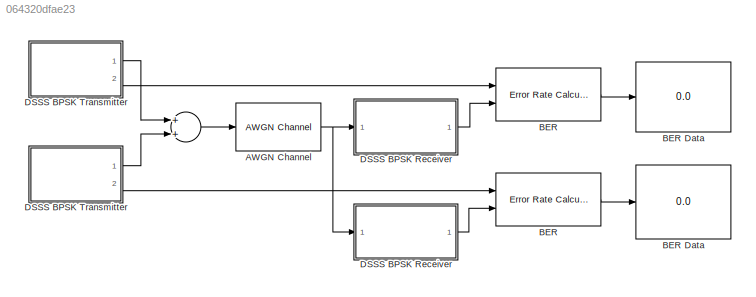
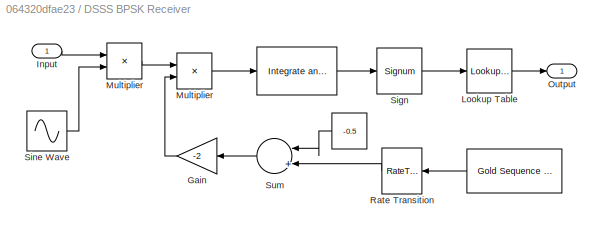
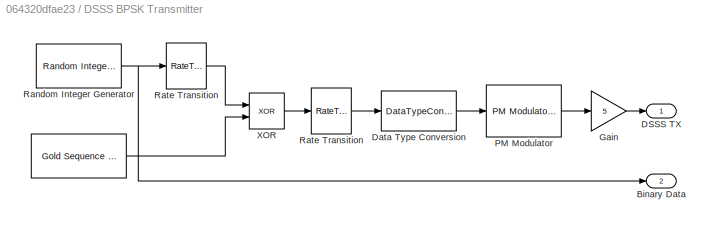
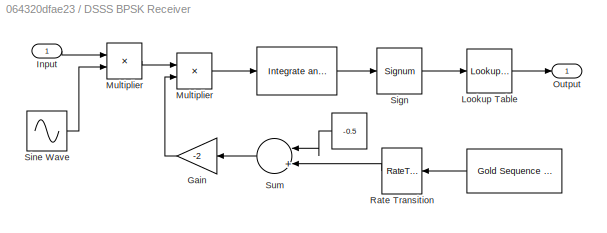
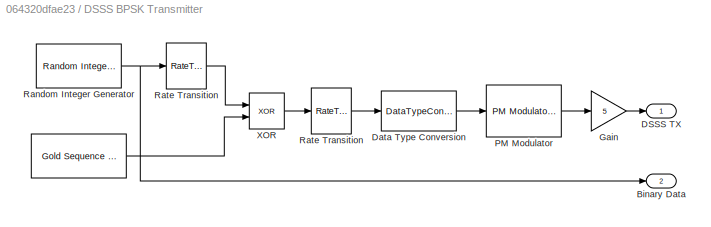
MODEL slx_064320dfae23
KIND model
BLOCK [Sum]  
  InputSameDT = off
  OutDataTypeStr = Inherit: Inherit via internal rule
  Ports = [2, 1]
  SaturateOnIntegerOverflow = off
BLOCK [Reference]  BER   REF=commsink2/Error Rate
Calculation
  N = 2
  PMode = Port
  Ports = [2, 1]
  RsMode2 = off
  SourceBlock = commsink2/Error Rate\nCalculation
  SourceType = Error Rate Calculation
  WsName = ErrorVec
  cp_mode = Entire frame
  maxBits = 1e6
  numErr = 100
  st_delay = 0
  stop = off
  subframe = []
BLOCK [Display]  BER Data 
  Decimation = 1
  Format = long
  Ports = [1]
BLOCK [Reference] AWGN Channel  REF=commchan3/AWGN
Channel
  EbNodB = 80
  EsNodB = 10
  InputProcessing = Columns as channels (frame based)
  Ports = [1, 1]
  Ps = 12.5
  SNRdB = 0
  SourceBlock = commchan3/AWGN\nChannel
  SourceType = AWGN Channel
  Tsym = 1e-3
  UserDataPersistent = on
  bitsPerSym = 1
  noiseMode = Signal to noise ratio  (Eb/No)
  seed = randseed
  variance = 100000
BLOCK [Reference] BER  REF=commsink2/Error Rate
Calculation
  N = 2
  PMode = Port
  Ports = [2, 1]
  RsMode2 = off
  SourceBlock = commsink2/Error Rate\nCalculation
  SourceType = Error Rate Calculation
  WsName = ErrorVec
  cp_mode = Entire frame
  maxBits = 1e6
  numErr = 100
  st_delay = 0
  stop = off
  subframe = []
BLOCK [Display] BER Data
  Decimation = 1
  Format = long
  Ports = [1]
BLOCK [SubSystem] DSSS BPSK Receiver
  Ports = [1, 1]
  RequestExecContextInheritance = off
BLOCK [SubSystem] DSSS BPSK Receiver  
  Ports = [1, 1]
  RequestExecContextInheritance = off
BLOCK [Constant] DSSS BPSK Receiver  / 
  Value = -0.5
BLOCK [Reference] DSSS BPSK Receiver  /     REF=commseqgen2/Gold Sequence
Generator
  Ports = [0, 1]
  SourceBlock = commseqgen2/Gold Sequence\nGenerator
  SourceType = Gold Sequence Generator
  frameBased = off
  genPoly1 = [1 0 0 1 0 1]
  genPoly2 = [1 1 1 1 0 1]
  index = 0
  iniState1 = [1 0 1 0 1]
  iniState2 = [1 1 1 0 0]
  maxOutSize = [10 1]
  maxOutSizeMode = Dialog parameter
  outDataType = double
  outVarSiz = off
  reset = off
  sampPerFrame = 1
  shift = 0
  ts = 2e-5
BLOCK [Reference] DSSS BPSK Receiver  /      REF=commfilt2/Integrate
and Dump
  LockScale = off
  Ports = [1, 1]
  SourceBlock = commfilt2/Integrate\nand Dump
  SourceType = Integrate and Dump
  accumFracLength = 30
  accumMode = Inherit via internal rule
  accumWordLength = 32
  nodump = off
  obssamples = 5000
  offsetsamples = 0
  outputFracLength = 30
  outputMode = Same as accumulator
  outputWordLength = 32
  overflowMode = off
  roundingMode = Floor
BLOCK [Lookup_n-D] DSSS BPSK Receiver  / Lookup Table
  BreakpointsForDimension1 = [-1, 0, 1]
  BreakpointsForDimension3 = [5, 7]
  InternalRulePriority = Speed
  NumberOfTableDimensions = 1
  Ports = [1, 1]
  RndMeth = Simplest
  Table = [0, 0, 1]
BLOCK [Gain] DSSS BPSK Receiver  /Gain
  Gain = -2
  OutDataTypeStr = Inherit: Inherit via internal rule
  ParamDataTypeStr = Inherit: Inherit via internal rule
  SaturateOnIntegerOverflow = off
BLOCK [Inport] DSSS BPSK Receiver  /Input
  IconDisplay = Port number
BLOCK [Product] DSSS BPSK Receiver  /Multiplier 
  InputSameDT = off
  OutDataTypeStr = Inherit: Inherit via internal rule
  Ports = [2, 1]
  RndMeth = Floor
  SaturateOnIntegerOverflow = off
BLOCK [Outport] DSSS BPSK Receiver  /Output
  IconDisplay = Port number
BLOCK [RateTransition] DSSS BPSK Receiver  /Rate Transition 
  OutPortSampleTime = 2e-7
BLOCK [Signum] DSSS BPSK Receiver  /Sign
BLOCK [Sin] DSSS BPSK Receiver  /Sine Wave
  Amplitude = 5
  Frequency = 200000*pi
  Phase = pi/2
  Ports = [0, 1]
  SampleTime = 2e-7
BLOCK [Sum] DSSS BPSK Receiver  /Sum
  InputSameDT = off
  Inputs = |++
  OutDataTypeStr = Inherit: Inherit via internal rule
  Ports = [2, 1]
  SaturateOnIntegerOverflow = off
BLOCK [Constant] DSSS BPSK Receiver/ 
  Value = -0.5
BLOCK [Reference] DSSS BPSK Receiver/     REF=commseqgen2/Gold Sequence
Generator
  Ports = [0, 1]
  SourceBlock = commseqgen2/Gold Sequence\nGenerator
  SourceType = Gold Sequence Generator
  frameBased = off
  genPoly1 = [1 0 0 1 0 1]
  genPoly2 = [1 1 1 1 0 1]
  index = 0
  iniState1 = [1 1 1 0 1]
  iniState2 = [1 0 0 0 1]
  maxOutSize = [10 1]
  maxOutSizeMode = Dialog parameter
  outDataType = double
  outVarSiz = off
  reset = off
  sampPerFrame = 1
  shift = 0
  ts = 2e-5
BLOCK [Reference] DSSS BPSK Receiver/      REF=commfilt2/Integrate
and Dump
  LockScale = off
  Ports = [1, 1]
  SourceBlock = commfilt2/Integrate\nand Dump
  SourceType = Integrate and Dump
  accumFracLength = 30
  accumMode = Inherit via internal rule
  accumWordLength = 32
  nodump = off
  obssamples = 5000
  offsetsamples = 0
  outputFracLength = 30
  outputMode = Same as accumulator
  outputWordLength = 32
  overflowMode = off
  roundingMode = Floor
BLOCK [Lookup_n-D] DSSS BPSK Receiver/ Lookup Table
  BreakpointsForDimension1 = [-1, 0, 1]
  BreakpointsForDimension3 = [5, 7]
  InternalRulePriority = Speed
  NumberOfTableDimensions = 1
  Ports = [1, 1]
  RndMeth = Simplest
  Table = [0, 0, 1]
BLOCK [Gain] DSSS BPSK Receiver/Gain
  Gain = -2
  OutDataTypeStr = Inherit: Inherit via internal rule
  ParamDataTypeStr = Inherit: Inherit via internal rule
  SaturateOnIntegerOverflow = off
BLOCK [Inport] DSSS BPSK Receiver/Input
  IconDisplay = Port number
BLOCK [Product] DSSS BPSK Receiver/Multiplier 
  InputSameDT = off
  OutDataTypeStr = Inherit: Inherit via internal rule
  Ports = [2, 1]
  RndMeth = Floor
  SaturateOnIntegerOverflow = off
BLOCK [Outport] DSSS BPSK Receiver/Output
  IconDisplay = Port number
BLOCK [RateTransition] DSSS BPSK Receiver/Rate Transition 
  OutPortSampleTime = 2e-7
BLOCK [Signum] DSSS BPSK Receiver/Sign
BLOCK [Sin] DSSS BPSK Receiver/Sine Wave
  Amplitude = 5
  Frequency = 200000*pi
  Phase = pi/2
  Ports = [0, 1]
  SampleTime = 2e-7
BLOCK [Sum] DSSS BPSK Receiver/Sum
  InputSameDT = off
  Inputs = |++
  OutDataTypeStr = Inherit: Inherit via internal rule
  Ports = [2, 1]
  SaturateOnIntegerOverflow = off
BLOCK [SubSystem] DSSS BPSK Transmitter
  Ports = [0, 2]
  RequestExecContextInheritance = off
BLOCK [SubSystem] DSSS BPSK Transmitter 
  Ports = [0, 2]
  RequestExecContextInheritance = off
BLOCK [Reference] DSSS BPSK Transmitter /   REF=commseqgen2/Gold Sequence
Generator
  Ports = [0, 1]
  SourceBlock = commseqgen2/Gold Sequence\nGenerator
  SourceType = Gold Sequence Generator
  frameBased = off
  genPoly1 = [1 0 0 1 0 1]
  genPoly2 = [1 1 1 1 0 1]
  index = 0
  iniState1 = [1 0 1 0 1]
  iniState2 = [1 1 1 0 0]
  maxOutSize = [10 1]
  maxOutSizeMode = Dialog parameter
  outDataType = double
  outVarSiz = off
  reset = off
  sampPerFrame = 1
  shift = 0
  ts = 2e-5
BLOCK [Outport] DSSS BPSK Transmitter /Binary Data 
  IconDisplay = Port number
  Port = 2
BLOCK [Outport] DSSS BPSK Transmitter /DSSS TX
  IconDisplay = Port number
BLOCK [DataTypeConversion] DSSS BPSK Transmitter /Data Type Conversion
  OutDataTypeStr = double
  RndMeth = Floor
  SaturateOnIntegerOverflow = off
BLOCK [Gain] DSSS BPSK Transmitter /Gain
  Gain = 5
  OutDataTypeStr = Inherit: Inherit via internal rule
  ParamDataTypeStr = Inherit: Inherit via internal rule
  SaturateOnIntegerOverflow = off
BLOCK [Reference] DSSS BPSK Transmitter /PM Modulator  REF=commanapbnd3/PM
Modulator
Passband
  Fc = 100000
  Kc = pi
  Ph = pi
  Ports = [1, 1]
  SourceBlock = commanapbnd3/PM\nModulator\nPassband
  SourceType = PM Modulator Passband
BLOCK [Reference] DSSS BPSK Transmitter /Random Integer Generator  REF=commrandsrc2/Random Integer
Generator
  Ports = [0, 1]
  SourceBlock = commrandsrc2/Random Integer\nGenerator
  SourceType = Random Integer Generator
  Ts = 1e-3
  frameBased = off
  mul = 2
  orient = on
  outDataType = double
  sampPerFrame = 50
  seed = 49
BLOCK [RateTransition] DSSS BPSK Transmitter /Rate Transition
  OutPortSampleTime = 2e-5
BLOCK [RateTransition] DSSS BPSK Transmitter /Rate Transition 
  OutPortSampleTime = 2e-7
BLOCK [Logic] DSSS BPSK Transmitter /XOR
  AllPortsSameDT = off
  IconShape = distinctive
  Operator = XOR
  OutDataTypeStr = boolean
  Ports = [2, 1]
BLOCK [Reference] DSSS BPSK Transmitter/   REF=commseqgen2/Gold Sequence
Generator
  Ports = [0, 1]
  SourceBlock = commseqgen2/Gold Sequence\nGenerator
  SourceType = Gold Sequence Generator
  frameBased = off
  genPoly1 = [1 0 0 1 0 1]
  genPoly2 = [1 1 1 1 0 1]
  index = 0
  iniState1 = [1 1 1 0 1]
  iniState2 = [1 0 0 0 1]
  maxOutSize = [10 1]
  maxOutSizeMode = Dialog parameter
  outDataType = double
  outVarSiz = off
  reset = off
  sampPerFrame = 1
  shift = 0
  ts = 2e-5
BLOCK [Outport] DSSS BPSK Transmitter/Binary Data 
  IconDisplay = Port number
  Port = 2
BLOCK [Outport] DSSS BPSK Transmitter/DSSS TX
  IconDisplay = Port number
BLOCK [DataTypeConversion] DSSS BPSK Transmitter/Data Type Conversion
  OutDataTypeStr = double
  RndMeth = Floor
  SaturateOnIntegerOverflow = off
BLOCK [Gain] DSSS BPSK Transmitter/Gain
  Gain = 5
  OutDataTypeStr = Inherit: Inherit via internal rule
  ParamDataTypeStr = Inherit: Inherit via internal rule
  SaturateOnIntegerOverflow = off
BLOCK [Reference] DSSS BPSK Transmitter/PM Modulator  REF=commanapbnd3/PM
Modulator
Passband
  Fc = 100000
  Kc = pi
  Ph = pi
  Ports = [1, 1]
  SourceBlock = commanapbnd3/PM\nModulator\nPassband
  SourceType = PM Modulator Passband
BLOCK [Reference] DSSS BPSK Transmitter/Random Integer Generator  REF=commrandsrc2/Random Integer
Generator
  Ports = [0, 1]
  SourceBlock = commrandsrc2/Random Integer\nGenerator
  SourceType = Random Integer Generator
  Ts = 1e-3
  frameBased = off
  mul = 2
  orient = on
  outDataType = double
  sampPerFrame = 50
  seed = 37
BLOCK [RateTransition] DSSS BPSK Transmitter/Rate Transition
  OutPortSampleTime = 2e-5
BLOCK [RateTransition] DSSS BPSK Transmitter/Rate Transition 
  OutPortSampleTime = 2e-7
BLOCK [Logic] DSSS BPSK Transmitter/XOR
  AllPortsSameDT = off
  IconShape = distinctive
  Operator = XOR
  OutDataTypeStr = boolean
  Ports = [2, 1]
LINE  :1 -> AWGN Channel:1
LINE  BER :1 ->  BER Data :1
NET AWGN Channel:1 -> DSSS BPSK Receiver  :1, DSSS BPSK Receiver:1
LINE BER:1 -> BER Data:1
LINE DSSS BPSK Receiver  /    :1 -> DSSS BPSK Receiver  /Sign:1
LINE DSSS BPSK Receiver  /   :1 -> DSSS BPSK Receiver  /Rate Transition :1
LINE DSSS BPSK Receiver  / :1 -> DSSS BPSK Receiver  /Sum:1
LINE DSSS BPSK Receiver  / Lookup Table:1 -> DSSS BPSK Receiver  /Output:1
LINE DSSS BPSK Receiver  /Gain:1 -> DSSS BPSK Receiver  /Multiplier :2
LINE DSSS BPSK Receiver  /Input:1 -> DSSS BPSK Receiver  /Multiplier :1
NET DSSS BPSK Receiver  /Multiplier :1 -> DSSS BPSK Receiver  /    :1, DSSS BPSK Receiver  /Multiplier :1
LINE DSSS BPSK Receiver  /Rate Transition :1 -> DSSS BPSK Receiver  /Sum:2
LINE DSSS BPSK Receiver  /Sign:1 -> DSSS BPSK Receiver  / Lookup Table:1
LINE DSSS BPSK Receiver  /Sine Wave:1 -> DSSS BPSK Receiver  /Multiplier :2
LINE DSSS BPSK Receiver  /Sum:1 -> DSSS BPSK Receiver  /Gain:1
LINE DSSS BPSK Receiver  :1 -> BER:2
LINE DSSS BPSK Receiver/    :1 -> DSSS BPSK Receiver/Sign:1
LINE DSSS BPSK Receiver/   :1 -> DSSS BPSK Receiver/Rate Transition :1
LINE DSSS BPSK Receiver/ :1 -> DSSS BPSK Receiver/Sum:1
LINE DSSS BPSK Receiver/ Lookup Table:1 -> DSSS BPSK Receiver/Output:1
LINE DSSS BPSK Receiver/Gain:1 -> DSSS BPSK Receiver/Multiplier :2
LINE DSSS BPSK Receiver/Input:1 -> DSSS BPSK Receiver/Multiplier :1
NET DSSS BPSK Receiver/Multiplier :1 -> DSSS BPSK Receiver/    :1, DSSS BPSK Receiver/Multiplier :1
LINE DSSS BPSK Receiver/Rate Transition :1 -> DSSS BPSK Receiver/Sum:2
LINE DSSS BPSK Receiver/Sign:1 -> DSSS BPSK Receiver/ Lookup Table:1
LINE DSSS BPSK Receiver/Sine Wave:1 -> DSSS BPSK Receiver/Multiplier :2
LINE DSSS BPSK Receiver/Sum:1 -> DSSS BPSK Receiver/Gain:1
LINE DSSS BPSK Receiver:1 ->  BER :2
LINE DSSS BPSK Transmitter / :1 -> DSSS BPSK Transmitter /XOR:2
LINE DSSS BPSK Transmitter /Data Type Conversion:1 -> DSSS BPSK Transmitter /PM Modulator:1
LINE DSSS BPSK Transmitter /Gain:1 -> DSSS BPSK Transmitter /DSSS TX:1
LINE DSSS BPSK Transmitter /PM Modulator:1 -> DSSS BPSK Transmitter /Gain:1
NET DSSS BPSK Transmitter /Random Integer Generator:1 -> DSSS BPSK Transmitter /Binary Data :1, DSSS BPSK Transmitter /Rate Transition:1
LINE DSSS BPSK Transmitter /Rate Transition :1 -> DSSS BPSK Transmitter /Data Type Conversion:1
LINE DSSS BPSK Transmitter /Rate Transition:1 -> DSSS BPSK Transmitter /XOR:1
LINE DSSS BPSK Transmitter /XOR:1 -> DSSS BPSK Transmitter /Rate Transition :1
LINE DSSS BPSK Transmitter :1 ->  :2
LINE DSSS BPSK Transmitter :2 -> BER:1
LINE DSSS BPSK Transmitter/ :1 -> DSSS BPSK Transmitter/XOR:2
LINE DSSS BPSK Transmitter/Data Type Conversion:1 -> DSSS BPSK Transmitter/PM Modulator:1
LINE DSSS BPSK Transmitter/Gain:1 -> DSSS BPSK Transmitter/DSSS TX:1
LINE DSSS BPSK Transmitter/PM Modulator:1 -> DSSS BPSK Transmitter/Gain:1
NET DSSS BPSK Transmitter/Random Integer Generator:1 -> DSSS BPSK Transmitter/Binary Data :1, DSSS BPSK Transmitter/Rate Transition:1
LINE DSSS BPSK Transmitter/Rate Transition :1 -> DSSS BPSK Transmitter/Data Type Conversion:1
LINE DSSS BPSK Transmitter/Rate Transition:1 -> DSSS BPSK Transmitter/XOR:1
LINE DSSS BPSK Transmitter/XOR:1 -> DSSS BPSK Transmitter/Rate Transition :1
LINE DSSS BPSK Transmitter:1 ->  :1
LINE DSSS BPSK Transmitter:2 ->  BER :1
note: NET lines group one-source signal fan-out (src -> all destinations, sorted); 1:1 wires keep LINE
